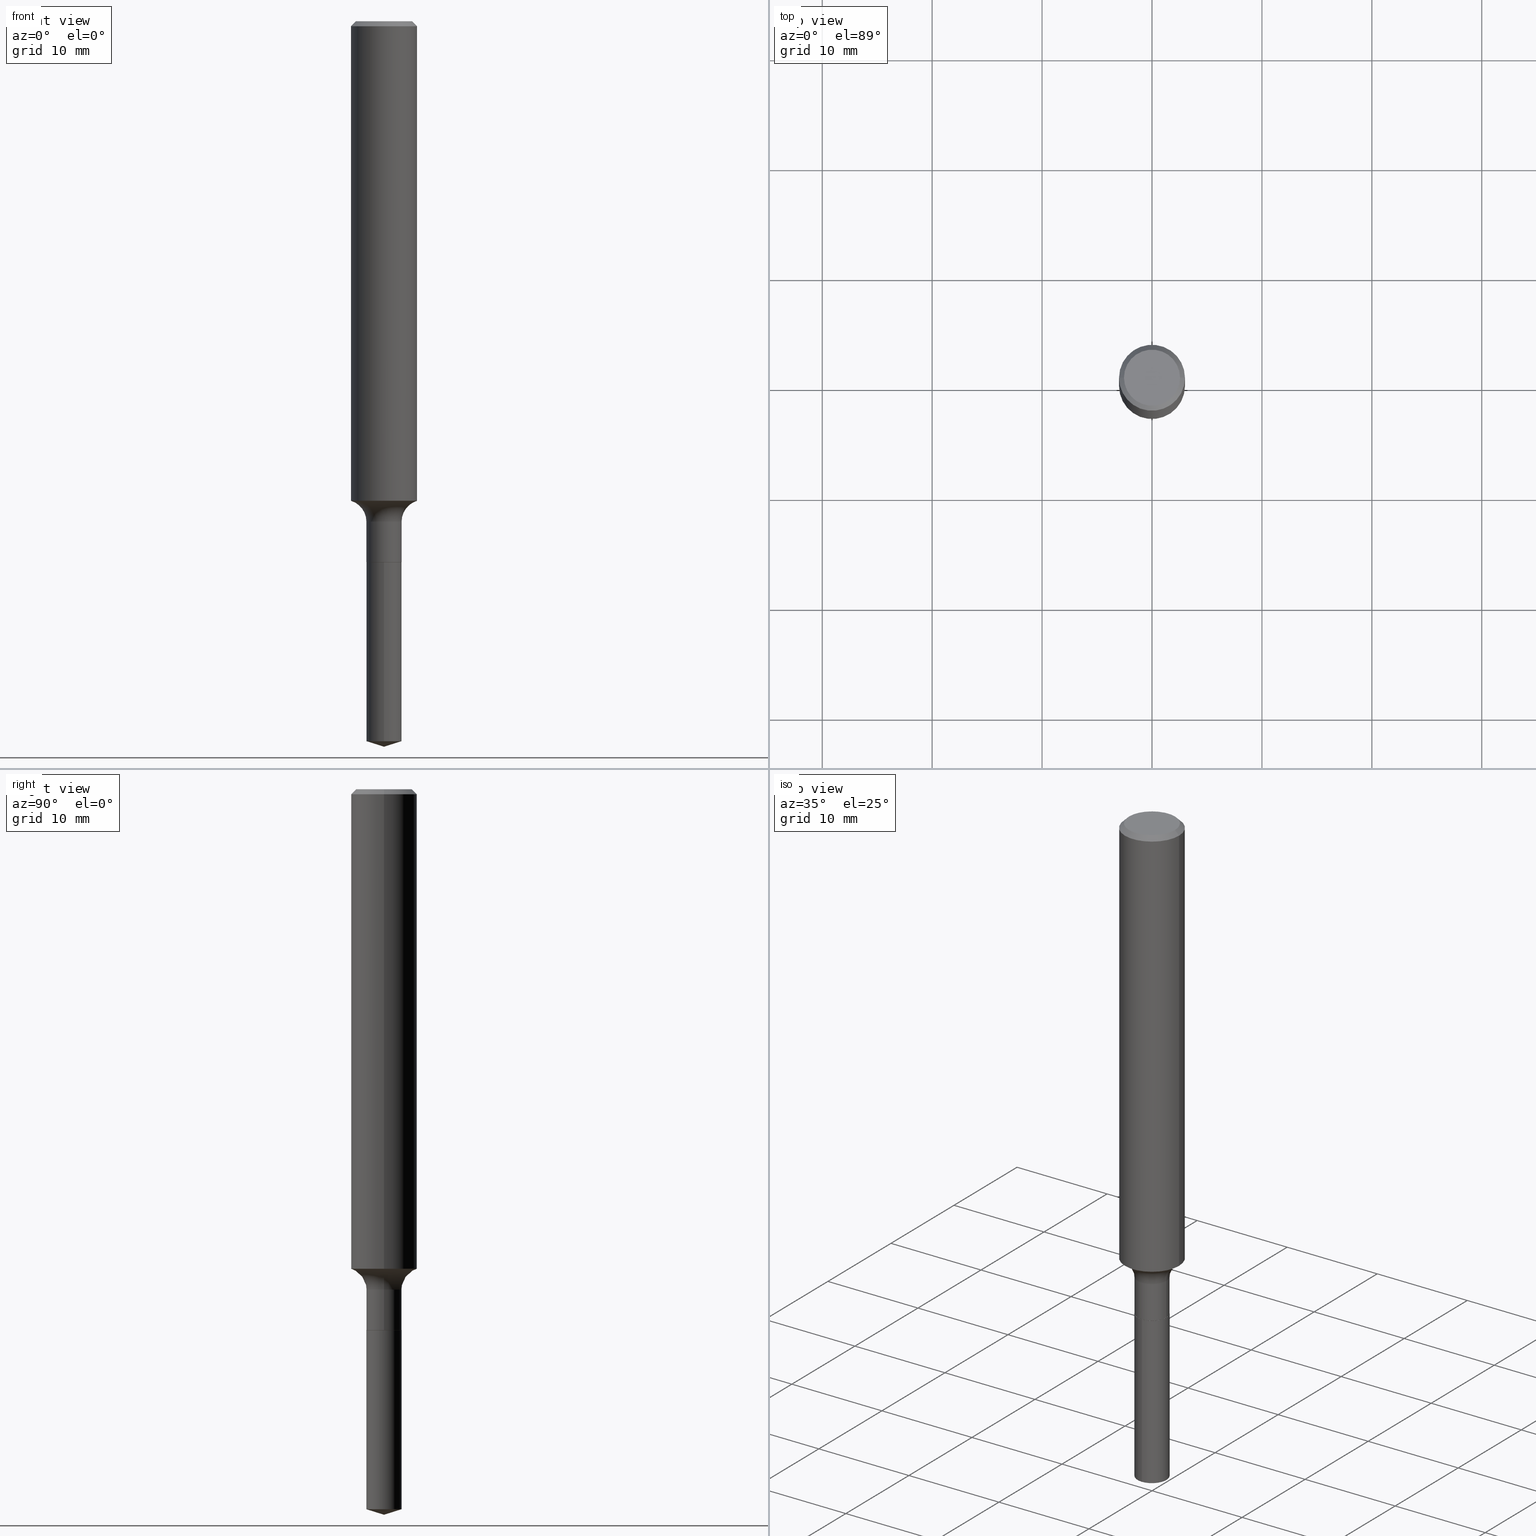
[diagram: canonical four-view strip — front | top / right | iso, engineering-drawing reading convention]
A machine part, canonical four-view strip (front | top / right | iso — engineering-drawing reading convention). The complete STEP part file that produces these views, byte-faithful:
ISO-10303-21;
HEADER;
FILE_DESCRIPTION (( 'STEP AP203' ),
    '1' );
FILE_NAME ('50004.STEP',
    '2024-04-19T12:44:44',
    ( '' ),
    ( '' ),
    'SwSTEP 2.0',
    'SolidWorks 2023',
    '' );
FILE_SCHEMA (( 'CONFIG_CONTROL_DESIGN' ));
ENDSEC;

DATA;
#1 = DATE_AND_TIME ( #223, #466 ) ;
#2 = DIRECTION ( 'NONE',  ( -2.445468806185136597E-29, 3.491481338843145583E-15, 1.000000000000000000 ) ) ;
#3 = TOROIDAL_SURFACE ( 'NONE', #443, 0.1409999999999999865, 0.07799999999999995826 ) ;
#4 = CIRCLE ( 'NONE', #429, 0.1181000000000001909 ) ;
#5 = SECURITY_CLASSIFICATION_LEVEL ( 'unclassified' ) ;
#6 = DIRECTION ( 'NONE',  ( -2.445450074066732039E-29, 3.491508164302866800E-15, 1.000000000000000000 ) ) ;
#7 = DIRECTION ( 'NONE',  ( -2.445468806185136597E-29, 3.491481338843145583E-15, 1.000000000000000000 ) ) ;
#8 = EDGE_LOOP ( 'NONE', ( #131, #183, #29 ) ) ;
#9 = CONICAL_SURFACE ( 'NONE', #246, 124.8659371009116796, 1.265363707695883910 ) ;
#10 = FACE_OUTER_BOUND ( 'NONE', #222, .T. ) ;
#11 = DIRECTION ( 'NONE',  ( 2.445468806185136597E-29, -3.491481338843145583E-15, -1.000000000000000000 ) ) ;
#12 = EDGE_CURVE ( 'NONE', #264, #146, #151, .T. ) ;
#13 = CARTESIAN_POINT ( 'NONE',  ( 1.756471047675818066E-47, -2.507775143018572197E-33, -7.182553476999219361E-19 ) ) ;
#14 = ORIENTED_EDGE ( 'NONE', *, *, #208, .T. ) ;
#15 = EDGE_CURVE ( 'NONE', #59, #288, #35, .T. ) ;
#16 = CONICAL_SURFACE ( 'NONE', #87, 0.06250000000000000000, 0.7853981633975591903 ) ;
#17 = DIRECTION ( 'NONE',  ( 1.000000000000000000, -6.982962677686266711E-15, 0.000000000000000000 ) ) ;
#18 = VERTEX_POINT ( 'NONE', #404 ) ;
#19 = VECTOR ( 'NONE', #181, 39.37007874015748143 ) ;
#20 = ORIENTED_EDGE ( 'NONE', *, *, #278, .T. ) ;
#21 = DESIGN_CONTEXT ( 'detailed design', #95, 'design' ) ;
#22 = CARTESIAN_POINT ( 'NONE',  ( 0.1180999999999999966, -8.720764054544245267E-16, -0.01771500000000010219 ) ) ;
#23 = CYLINDRICAL_SURFACE ( 'NONE', #50, 0.06300000000000000044 ) ;
#24 = CARTESIAN_POINT ( 'NONE',  ( 4.736873077580609355E-29, -6.762999353339172249E-15, -1.936999999999999833 ) ) ;
#25 = APPLICATION_CONTEXT ( 'configuration controlled 3d designs of mechanical parts and assemblies' ) ;
#26 = DIRECTION ( 'NONE',  ( -2.445468806185136597E-29, 3.491481338843145583E-15, 1.000000000000000000 ) ) ;
#27 = AXIS2_PLACEMENT_3D ( 'NONE', #286, #398, #57 ) ;
#28 = CONICAL_SURFACE ( 'NONE', #122, 0.1180999999999999966, 0.7853981633974456145 ) ;
#29 = ORIENTED_EDGE ( 'NONE', *, *, #197, .F. ) ;
#30 = ORIENTED_EDGE ( 'NONE', *, *, #285, .F. ) ;
#31 = DIRECTION ( 'NONE',  ( -2.445450074066732319E-29, 3.491508164302866800E-15, 1.000000000000000000 ) ) ;
#32 = ORIENTED_EDGE ( 'NONE', *, *, #420, .T. ) ;
#33 = CC_DESIGN_PERSON_AND_ORGANIZATION_ASSIGNMENT ( #413, #309, ( #157 ) ) ;
#34 = PLANE ( 'NONE',  #427 ) ;
#35 = CIRCLE ( 'NONE', #212, 0.06250000000000000000 ) ;
#36 = VERTEX_POINT ( 'NONE', #113 ) ;
#37 = COORDINATED_UNIVERSAL_TIME_OFFSET ( 5, 0, .BEHIND. ) ;
#38 = CYLINDRICAL_SURFACE ( 'NONE', #377, 0.06300000000000000044 ) ;
#39 = APPROVAL_ROLE ( '' ) ;
#40 = DIRECTION ( 'NONE',  ( -2.445468806185136597E-29, 3.491481338843145583E-15, 1.000000000000000000 ) ) ;
#41 = APPROVAL_STATUS ( 'not_yet_approved' ) ;
#42 = DIRECTION ( 'NONE',  ( 1.000000000000000000, -6.982962677686272233E-15, 0.000000000000000000 ) ) ;
#43 = CIRCLE ( 'NONE', #322, 0.06300000000000000044 ) ;
#44 = DATE_AND_TIME ( #229, #333 ) ;
#45 = FACE_OUTER_BOUND ( 'NONE', #241, .T. ) ;
#46 = CARTESIAN_POINT ( 'NONE',  ( -8.992326821456285548E-28, 1.283886684972974943E-13, 36.77167874015748339 ) ) ;
#47 = PRODUCT_DEFINITION ( 'UNKNOWN', '', #458, #21 ) ;
#48 = CIRCLE ( 'NONE', #257, 0.07799999999999995826 ) ;
#49 = CC_DESIGN_SECURITY_CLASSIFICATION ( #157, ( #458 ) ) ;
#50 = AXIS2_PLACEMENT_3D ( 'NONE', #256, #178, #220 ) ;
#51 = DIRECTION ( 'NONE',  ( -2.445450074066732319E-29, 3.491508164302866800E-15, 1.000000000000000000 ) ) ;
#52 = CARTESIAN_POINT ( 'NONE',  ( -0.1181000000000001077, 8.391509709326790846E-16, -5.809262341591049389E-30 ) ) ;
#53 = ORIENTED_EDGE ( 'NONE', *, *, #328, .F. ) ;
#54 = ADVANCED_FACE ( 'NONE', ( #451 ), #34, .F. ) ;
#55 = CARTESIAN_POINT ( 'NONE',  ( 4.736873077580609355E-29, -6.762999353339172249E-15, -1.936999999999999833 ) ) ;
#56 = EDGE_LOOP ( 'NONE', ( #337, #14, #174, #168 ) ) ;
#57 = DIRECTION ( 'NONE',  ( 1.000000000000000000, -6.982962677686265922E-15, 4.876176775795935793E-29 ) ) ;
#58 = TOROIDAL_SURFACE ( 'NONE', #204, 0.1409999999999999865, 0.07799999999999995826 ) ;
#59 = VERTEX_POINT ( 'NONE', #269 ) ;
#60 = AXIS2_PLACEMENT_3D ( 'NONE', #215, #26, #173 ) ;
#61 = CYLINDRICAL_SURFACE ( 'NONE', #70, 0.1181000000000001077 ) ;
#62 = PRODUCT_RELATED_PRODUCT_CATEGORY ( 'detail', '', ( #123 ) ) ;
#63 = DIRECTION ( 'NONE',  ( -2.445468806185136597E-29, 3.491481338843145583E-15, 1.000000000000000000 ) ) ;
#64 = DIRECTION ( 'NONE',  ( 1.000000000000000000, -6.982962677686262766E-15, 0.000000000000000000 ) ) ;
#65 = VERTEX_POINT ( 'NONE', #159 ) ;
#66 = ORIENTED_EDGE ( 'NONE', *, *, #15, .T. ) ;
#67 = ORIENTED_EDGE ( 'NONE', *, *, #82, .F. ) ;
#68 = DIRECTION ( 'NONE',  ( -6.982962677686266711E-15, -1.000000000000000000, 3.491481338843145583E-15 ) ) ;
#69 = CIRCLE ( 'NONE', #150, 0.1180999999999999966 ) ;
#70 = AXIS2_PLACEMENT_3D ( 'NONE', #405, #439, #338 ) ;
#71 = EDGE_CURVE ( 'NONE', #210, #486, #386, .T. ) ;
#72 = PERSON ( 'UNSPECIFIED', 'UNSPECIFIED', 'UNSPECIFIED', ('UNSPECIFIED'), ('UNSPECIFIED'), ('UNSPECIFIED') ) ;
#73 = DIRECTION ( 'NONE',  ( -2.445468806185136597E-29, 3.491481338843145583E-15, 1.000000000000000000 ) ) ;
#74 = ADVANCED_FACE ( 'NONE', ( #385 ), #58, .F. ) ;
#75 = APPROVAL_ROLE ( '' ) ;
#76 = DIRECTION ( 'NONE',  ( 2.445450074066731759E-29, -3.491508164302866800E-15, -1.000000000000000000 ) ) ;
#77 = ORIENTED_EDGE ( 'NONE', *, *, #197, .T. ) ;
#78 = LINE ( 'NONE', #226, #217 ) ;
#79 = AXIS2_PLACEMENT_3D ( 'NONE', #55, #170, #460 ) ;
#80 = ORIENTED_EDGE ( 'NONE', *, *, #160, .F. ) ;
#81 = APPLICATION_PROTOCOL_DEFINITION ( 'international standard', 'config_control_design', 1994, #95 ) ;
#82 = EDGE_CURVE ( 'NONE', #289, #343, #302, .T. ) ;
#83 = EDGE_CURVE ( 'NONE', #471, #210, #448, .T. ) ;
#84 = DIRECTION ( 'NONE',  ( 1.000000000000000000, -6.982962677686266711E-15, 4.876176775795935793E-29 ) ) ;
#85 = DIRECTION ( 'NONE',  ( 0.000000000000000000, 0.000000000000000000, 1.000000000000000000 ) ) ;
#86 = CARTESIAN_POINT ( 'NONE',  ( -0.1180999999999999966, -2.190149613831435069E-15, -0.01771500000000010219 ) ) ;
#87 = AXIS2_PLACEMENT_3D ( 'NONE', #240, #393, #422 ) ;
#88 = CARTESIAN_POINT ( 'NONE',  ( 4.476419235289261305E-16, 0.06299999999999097988, -2.578536176300623595 ) ) ;
#89 = DIRECTION ( 'NONE',  ( -2.445450074066732319E-29, 3.491508164302866800E-15, 1.000000000000000000 ) ) ;
#90 = FACE_OUTER_BOUND ( 'NONE', #376, .T. ) ;
#91 = AXIS2_PLACEMENT_3D ( 'NONE', #236, #51, #318 ) ;
#92 = LOCAL_TIME ( 8, 44, 44.00000000000000000, #184 ) ;
#93 = CARTESIAN_POINT ( 'NONE',  ( 4.736873077580609355E-29, -6.762999353339172249E-15, -1.936999999999999833 ) ) ;
#94 = ADVANCED_FACE ( 'NONE', ( #188 ), #38, .T. ) ;
#95 = APPLICATION_CONTEXT ( 'configuration controlled 3d designs of mechanical parts and assemblies' ) ;
#96 = CARTESIAN_POINT ( 'NONE',  ( 6.354257472454996656E-29, -9.072334814124569069E-15, -2.598399999999999821 ) ) ;
#97 = ORIENTED_EDGE ( 'NONE', *, *, #71, .F. ) ;
#98 = DIRECTION ( 'NONE',  ( 1.000000000000000000, -6.982962677686269077E-15, 0.000000000000000000 ) ) ;
#99 = APPLICATION_PROTOCOL_DEFINITION ( 'international standard', 'config_control_design', 1994, #25 ) ;
#100 = VERTEX_POINT ( 'NONE', #86 ) ;
#101 = EDGE_CURVE ( 'NONE', #36, #297, #351, .T. ) ;
#102 = VECTOR ( 'NONE', #216, 39.37007874015748854 ) ;
#103 = CARTESIAN_POINT ( 'NONE',  ( 6.305717767431456764E-29, -9.002928150588443769E-15, -2.578536176300623595 ) ) ;
#104 = DIRECTION ( 'NONE',  ( -6.982962677686265922E-15, -1.000000000000000000, 0.000000000000000000 ) ) ;
#105 = EDGE_LOOP ( 'NONE', ( #258, #218, #97, #449 ) ) ;
#106 = DIRECTION ( 'NONE',  ( -6.982962677686265922E-15, -1.000000000000000000, 0.000000000000000000 ) ) ;
#107 = ORIENTED_EDGE ( 'NONE', *, *, #301, .F. ) ;
#108 = UNCERTAINTY_MEASURE_WITH_UNIT (LENGTH_MEASURE( 1.000000000000000082E-05 ), #214, 'distance_accuracy_value', 'NONE');
#109 = EDGE_LOOP ( 'NONE', ( #135, #239 ) ) ;
#110 = CC_DESIGN_APPROVAL ( #224, ( #47 ) ) ;
#111 = ORIENTED_EDGE ( 'NONE', *, *, #357, .T. ) ;
#112 = APPROVAL_DATE_TIME ( #303, #408 ) ;
#113 = CARTESIAN_POINT ( 'NONE',  ( 0.1181000000000001354, -6.821437469845371752E-15, -1.717537341785582594 ) ) ;
#114 = CARTESIAN_POINT ( 'NONE',  ( 6.354257472454996656E-29, -9.072334814124569069E-15, -2.598399999999999821 ) ) ;
#115 = MANIFOLD_SOLID_BREP ( 'Body-Move/Copy2[2]', #194 ) ;
#116 = DIRECTION ( 'NONE',  ( 1.000000000000000000, -6.982962677686268288E-15, 4.883557194083113462E-29 ) ) ;
#117 = EDGE_CURVE ( 'NONE', #59, #471, #78, .T. ) ;
#118 = ORIENTED_EDGE ( 'NONE', *, *, #185, .F. ) ;
#119 = SHAPE_DEFINITION_REPRESENTATION ( #268, #463 ) ;
#120 = VECTOR ( 'NONE', #389, 39.37007874015748143 ) ;
#121 = DIRECTION ( 'NONE',  ( 1.000000000000000000, -6.982962677686265922E-15, 4.876176775795936353E-29 ) ) ;
#122 = AXIS2_PLACEMENT_3D ( 'NONE', #312, #11, #461 ) ;
#123 = PRODUCT ( '50004', '50004', '', ( #266 ) ) ;
#124 = DATE_AND_TIME ( #152, #126 ) ;
#125 = ADVANCED_FACE ( 'NONE', ( #191 ), #155, .T. ) ;
#126 = LOCAL_TIME ( 8, 44, 44.00000000000000000, #491 ) ;
#127 = CARTESIAN_POINT ( 'NONE',  ( 0.1181000000000001077, -8.246878922347488542E-16, 5.758764772215005345E-30 ) ) ;
#128 = ORIENTED_EDGE ( 'NONE', *, *, #82, .T. ) ;
#129 = CARTESIAN_POINT ( 'NONE',  ( 4.735650343177517114E-29, -6.761253612669751535E-15, -1.936499999999999888 ) ) ;
#130 = CARTESIAN_POINT ( 'NONE',  ( 0.000000000000000000, 0.000000000000000000, 0.000000000000000000 ) ) ;
#131 = ORIENTED_EDGE ( 'NONE', *, *, #165, .F. ) ;
#132 = VECTOR ( 'NONE', #291, 39.37007874015748854 ) ;
#133 = AXIS2_PLACEMENT_3D ( 'NONE', #387, #85, #190 ) ;
#134 = DIRECTION ( 'NONE',  ( -2.445468806185136597E-29, 3.491481338843145583E-15, 1.000000000000000000 ) ) ;
#135 = ORIENTED_EDGE ( 'NONE', *, *, #201, .T. ) ;
#136 = FACE_OUTER_BOUND ( 'NONE', #227, .T. ) ;
#137 = CARTESIAN_POINT ( 'NONE',  ( -4.399266486941873942E-16, -0.06300000000000675893, -1.936999999999999611 ) ) ;
#138 = ORIENTED_EDGE ( 'NONE', *, *, #101, .T. ) ;
#139 = FACE_OUTER_BOUND ( 'NONE', #148, .T. ) ;
#140 = CC_DESIGN_DATE_AND_TIME_ASSIGNMENT ( #149, #450, ( #157 ) ) ;
#141 = CARTESIAN_POINT ( 'NONE',  ( 6.354330677019383032E-29, -9.072230892293610064E-15, -2.598399999999999821 ) ) ;
#142 = CARTESIAN_POINT ( 'NONE',  ( 4.476419235289264263E-16, 0.06299999999999324196, -1.937000000000000055 ) ) ;
#143 = EDGE_CURVE ( 'NONE', #486, #210, #313, .T. ) ;
#144 = CARTESIAN_POINT ( 'NONE',  ( 4.735650343177517114E-29, -6.761253612669751535E-15, -1.936499999999999888 ) ) ;
#145 = CARTESIAN_POINT ( 'NONE',  ( 8.782355238379090331E-48, -1.253887571509286098E-33, -3.591276738499609681E-19 ) ) ;
#146 = VERTEX_POINT ( 'NONE', #436 ) ;
#147 = DIRECTION ( 'NONE',  ( -2.445468806185136597E-29, 3.491481338843145583E-15, 1.000000000000000000 ) ) ;
#148 = EDGE_LOOP ( 'NONE', ( #66, #203, #107, #469 ) ) ;
#149 = DATE_AND_TIME ( #384, #259 ) ;
#150 = AXIS2_PLACEMENT_3D ( 'NONE', #209, #364, #17 ) ;
#151 = LINE ( 'NONE', #114, #484 ) ;
#152 = CALENDAR_DATE ( 2024, 19, 4 ) ;
#153 = DIRECTION ( 'NONE',  ( -2.445468806185136597E-29, 3.491481338843145583E-15, 1.000000000000000000 ) ) ;
#154 = PERSON_AND_ORGANIZATION ( #72, #401 ) ;
#155 = CYLINDRICAL_SURFACE ( 'NONE', #392, 0.1181000000000001077 ) ;
#156 = CIRCLE ( 'NONE', #281, 0.1003850000000000020 ) ;
#157 = SECURITY_CLASSIFICATION ( '', '', #5 ) ;
#158 = CALENDAR_DATE ( 2024, 19, 4 ) ;
#159 = CARTESIAN_POINT ( 'NONE',  ( -0.06300000000000001432, -6.061526736476412649E-15, -1.936499999999999888 ) ) ;
#160 = EDGE_CURVE ( 'NONE', #255, #18, #295, .T. ) ;
#161 = LINE ( 'NONE', #464, #225 ) ;
#162 = AXIS2_PLACEMENT_3D ( 'NONE', #144, #298, #98 ) ;
#163 = CIRCLE ( 'NONE', #308, 0.06250000000000000000 ) ;
#164 = CARTESIAN_POINT ( 'NONE',  ( -0.06250000000000000000, -6.316260916314998432E-15, -1.936999999999999833 ) ) ;
#165 = EDGE_CURVE ( 'NONE', #264, #289, #367, .T. ) ;
#166 = DIRECTION ( 'NONE',  ( -6.982962677686265922E-15, -1.000000000000000000, 3.500519750498799490E-15 ) ) ;
#167 = DIRECTION ( 'NONE',  ( 1.000000000000000000, -6.982962677686266711E-15, 4.876140833081945105E-29 ) ) ;
#168 = ORIENTED_EDGE ( 'NONE', *, *, #143, .F. ) ;
#169 = VECTOR ( 'NONE', #262, 39.37007874015748143 ) ;
#170 = DIRECTION ( 'NONE',  ( -2.445450074066732319E-29, 3.491508164302866800E-15, 1.000000000000000000 ) ) ;
#171 = ORIENTED_EDGE ( 'NONE', *, *, #315, .F. ) ;
#172 = CARTESIAN_POINT ( 'NONE',  ( 4.382524647564382413E-29, -6.257083707340800005E-15, -1.792099999999999804 ) ) ;
#173 = DIRECTION ( 'NONE',  ( 1.000000000000000000, -6.982962677686266711E-15, 0.000000000000000000 ) ) ;
#174 = ORIENTED_EDGE ( 'NONE', *, *, #83, .T. ) ;
#175 = CARTESIAN_POINT ( 'NONE',  ( 6.305717767431456764E-29, -9.002928150588443769E-15, -2.578536176300623595 ) ) ;
#176 = EDGE_LOOP ( 'NONE', ( #317, #396 ) ) ;
#177 = CONICAL_SURFACE ( 'NONE', #91, 124.8659371009116796, 1.265363707695883910 ) ;
#178 = DIRECTION ( 'NONE',  ( -2.445450074066732319E-29, 3.491508164302866800E-15, 1.000000000000000000 ) ) ;
#179 = ORIENTED_EDGE ( 'NONE', *, *, #420, .F. ) ;
#180 = CARTESIAN_POINT ( 'NONE',  ( 0.06300000000000001432, -7.201180261363987000E-15, -1.936499999999999888 ) ) ;
#181 = DIRECTION ( 'NONE',  ( -0.7071067811866259545, 7.493145998870638150E-15, 0.7071067811864690800 ) ) ;
#182 = CARTESIAN_POINT ( 'NONE',  ( 4.382524647564382413E-29, -6.257083707340800005E-15, -1.792099999999999804 ) ) ;
#183 = ORIENTED_EDGE ( 'NONE', *, *, #12, .T. ) ;
#184 = COORDINATED_UNIVERSAL_TIME_OFFSET ( 5, 0, .BEHIND. ) ;
#185 = EDGE_CURVE ( 'NONE', #297, #486, #48, .T. ) ;
#186 = CLOSED_SHELL ( 'NONE', ( #347, #306, #270, #293, #54 ) ) ;
#187 = AXIS2_PLACEMENT_3D ( 'NONE', #93, #279, #473 ) ;
#188 = FACE_OUTER_BOUND ( 'NONE', #56, .T. ) ;
#189 = VERTEX_POINT ( 'NONE', #369 ) ;
#190 = DIRECTION ( 'NONE',  ( 1.000000000000000000, 0.000000000000000000, 0.000000000000000000 ) ) ;
#191 = FACE_OUTER_BOUND ( 'NONE', #332, .T. ) ;
#192 = COORDINATED_UNIVERSAL_TIME_OFFSET ( 5, 0, .BEHIND. ) ;
#193 = DIRECTION ( 'NONE',  ( -2.445468806185136597E-29, 3.491481338843145583E-15, 1.000000000000000000 ) ) ;
#194 = CLOSED_SHELL ( 'NONE', ( #371, #274, #125, #234, #263, #94, #74, #477, #329, #440, #233, #253 ) ) ;
#195 = CARTESIAN_POINT ( 'NONE',  ( 4.476419235289104519E-16, 0.06299999999999324196, -1.937000000000000055 ) ) ;
#196 = CC_DESIGN_APPROVAL ( #408, ( #458 ) ) ;
#197 = EDGE_CURVE ( 'NONE', #289, #146, #409, .T. ) ;
#198 = DATE_TIME_ROLE ( 'creation_date' ) ;
#199 = DIRECTION ( 'NONE',  ( -1.000000000000000000, 6.982962677686266711E-15, 0.000000000000000000 ) ) ;
#200 = ORIENTED_EDGE ( 'NONE', *, *, #185, .T. ) ;
#201 = EDGE_CURVE ( 'NONE', #189, #343, #43, .T. ) ;
#202 = FACE_OUTER_BOUND ( 'NONE', #8, .T. ) ;
#203 = ORIENTED_EDGE ( 'NONE', *, *, #424, .T. ) ;
#204 = AXIS2_PLACEMENT_3D ( 'NONE', #492, #193, #116 ) ;
#205 = DIRECTION ( 'NONE',  ( 1.000000000000000000, -6.982962677686266711E-15, 4.876140833081945105E-29 ) ) ;
#206 = DIRECTION ( 'NONE',  ( -2.445468806185136597E-29, 3.491481338843145583E-15, 1.000000000000000000 ) ) ;
#207 = EDGE_LOOP ( 'NONE', ( #310, #465, #380, #325 ) ) ;
#208 = EDGE_CURVE ( 'NONE', #65, #471, #475, .T. ) ;
#209 = CARTESIAN_POINT ( 'NONE',  ( 4.332147990156994116E-31, -6.185159191760667929E-17, -0.01771500000000010219 ) ) ;
#210 = VERTEX_POINT ( 'NONE', #242 ) ;
#211 = FACE_OUTER_BOUND ( 'NONE', #324, .T. ) ;
#212 = AXIS2_PLACEMENT_3D ( 'NONE', #254, #490, #426 ) ;
#213 = CC_DESIGN_PERSON_AND_ORGANIZATION_ASSIGNMENT ( #415, #381, ( #458 ) ) ;
#214 =( CONVERSION_BASED_UNIT ( 'INCH', #482 ) LENGTH_UNIT ( ) NAMED_UNIT ( #272 ) );
#215 = CARTESIAN_POINT ( 'NONE',  ( 4.332147990156994116E-31, -6.185159191760667929E-17, -0.01771500000000010219 ) ) ;
#216 = DIRECTION ( 'NONE',  ( 0.7071067811865454633, -7.319954787623246579E-15, -0.7071067811865493491 ) ) ;
#217 = VECTOR ( 'NONE', #379, 39.37007874015748143 ) ;
#218 = ORIENTED_EDGE ( 'NONE', *, *, #447, .T. ) ;
#219 = AXIS2_PLACEMENT_3D ( 'NONE', #292, #73, #299 ) ;
#220 = DIRECTION ( 'NONE',  ( -6.982962677686265922E-15, -1.000000000000000000, 4.336266656609941617E-15 ) ) ;
#221 = EDGE_LOOP ( 'NONE', ( #438, #399, #383, #30 ) ) ;
#222 = EDGE_LOOP ( 'NONE', ( #468, #32, #245, #339 ) ) ;
#223 = CALENDAR_DATE ( 2024, 19, 4 ) ;
#224 = APPROVAL ( #261, 'UNSPECIFIED' ) ;
#225 = VECTOR ( 'NONE', #358, 39.37007874015748854 ) ;
#226 = CARTESIAN_POINT ( 'NONE',  ( 0.06250000000000000000, -7.199434520694563130E-15, -1.936999999999999833 ) ) ;
#227 = EDGE_LOOP ( 'NONE', ( #406, #179 ) ) ;
#228 = PERSON_AND_ORGANIZATION ( #72, #401 ) ;
#229 = CALENDAR_DATE ( 2024, 19, 4 ) ;
#230 = DIRECTION ( 'NONE',  ( 6.982962677686265922E-15, 1.000000000000000000, -3.491508164302866800E-15 ) ) ;
#231 = PERSON_AND_ORGANIZATION ( #72, #401 ) ;
#232 = CYLINDRICAL_SURFACE ( 'NONE', #79, 0.06300000000000000044 ) ;
#233 = ADVANCED_FACE ( 'NONE', ( #136 ), #326, .F. ) ;
#234 = ADVANCED_FACE ( 'NONE', ( #211 ), #3, .F. ) ;
#235 = FACE_OUTER_BOUND ( 'NONE', #221, .T. ) ;
#236 = CARTESIAN_POINT ( 'NONE',  ( -8.992326821456285548E-28, 1.283886684972974943E-13, 36.77167874015748339 ) ) ;
#237 = AXIS2_PLACEMENT_3D ( 'NONE', #175, #330, #104 ) ;
#238 = DIRECTION ( 'NONE',  ( -2.445450074066732039E-29, 3.491508164302866800E-15, 1.000000000000000000 ) ) ;
#239 = ORIENTED_EDGE ( 'NONE', *, *, #336, .T. ) ;
#240 = CARTESIAN_POINT ( 'NONE',  ( 4.736873077580609355E-29, -6.762999353339172249E-15, -1.936999999999999833 ) ) ;
#241 = EDGE_LOOP ( 'NONE', ( #67, #77, #20, #481 ) ) ;
#242 = CARTESIAN_POINT ( 'NONE',  ( 0.06299999999999998657, -6.697010356035035470E-15, -1.792099999999999804 ) ) ;
#243 = CC_DESIGN_PERSON_AND_ORGANIZATION_ASSIGNMENT ( #228, #352, ( #123 ) ) ;
#244 = CARTESIAN_POINT ( 'NONE',  ( 4.736873077580609355E-29, -6.762999353339172249E-15, -1.936999999999999833 ) ) ;
#245 = ORIENTED_EDGE ( 'NONE', *, *, #117, .T. ) ;
#246 = AXIS2_PLACEMENT_3D ( 'NONE', #46, #89, #166 ) ;
#247 = CARTESIAN_POINT ( 'NONE',  ( 4.382524647564382413E-29, -6.257083707340800005E-15, -1.792099999999999804 ) ) ;
#248 = LINE ( 'NONE', #437, #19 ) ;
#249 = DIRECTION ( 'NONE',  ( 7.105427357601001859E-15, 1.000000000000000000, -3.491481338843145583E-15 ) ) ;
#250 = EDGE_CURVE ( 'NONE', #36, #18, #428, .T. ) ;
#251 = PLANE ( 'NONE',  #273 ) ;
#252 = ORIENTED_EDGE ( 'NONE', *, *, #101, .F. ) ;
#253 = ADVANCED_FACE ( 'NONE', ( #10 ), #16, .T. ) ;
#254 = CARTESIAN_POINT ( 'NONE',  ( 4.736873077580609355E-29, -6.762999353339172249E-15, -1.936999999999999833 ) ) ;
#255 = VERTEX_POINT ( 'NONE', #430 ) ;
#256 = CARTESIAN_POINT ( 'NONE',  ( 4.736873077580609355E-29, -6.762999353339172249E-15, -1.936999999999999833 ) ) ;
#257 = AXIS2_PLACEMENT_3D ( 'NONE', #472, #249, #402 ) ;
#258 = ORIENTED_EDGE ( 'NONE', *, *, #301, .T. ) ;
#259 = LOCAL_TIME ( 8, 44, 44.00000000000000000, #192 ) ;
#260 = DIRECTION ( 'NONE',  ( -2.445468806185136877E-29, 3.491481338843145188E-15, 1.000000000000000000 ) ) ;
#261 = APPROVAL_STATUS ( 'not_yet_approved' ) ;
#262 = DIRECTION ( 'NONE',  ( -2.445468806185136877E-29, 3.491481338843145188E-15, 1.000000000000000000 ) ) ;
#263 = ADVANCED_FACE ( 'NONE', ( #467 ), #323, .T. ) ;
#264 = VERTEX_POINT ( 'NONE', #96 ) ;
#265 = DIRECTION ( 'NONE',  ( -6.659769872151615522E-15, -0.9537169507482243791, 0.3007057995042812792 ) ) ;
#266 = MECHANICAL_CONTEXT ( 'NONE', #25, 'mechanical' ) ;
#267 = CIRCLE ( 'NONE', #485, 0.06300000000000000044 ) ;
#268 = PRODUCT_DEFINITION_SHAPE ( 'NONE', 'NONE',  #47 ) ;
#269 = CARTESIAN_POINT ( 'NONE',  ( 0.06250000000000000000, -7.199434520694563130E-15, -1.936999999999999833 ) ) ;
#270 = ADVANCED_FACE ( 'NONE', ( #202 ), #9, .T. ) ;
#271 = PERSON_AND_ORGANIZATION ( #72, #401 ) ;
#272 = DIMENSIONAL_EXPONENTS ( 1.000000000000000000, 0.000000000000000000, 0.000000000000000000, 0.000000000000000000, 0.000000000000000000, 0.000000000000000000, 0.000000000000000000 ) ;
#273 = AXIS2_PLACEMENT_3D ( 'NONE', #145, #403, #407 ) ;
#274 = ADVANCED_FACE ( 'NONE', ( #235 ), #421, .T. ) ;
#275 = DIRECTION ( 'NONE',  ( 1.000000000000000000, -6.982962677686268288E-15, 4.883557194083113462E-29 ) ) ;
#276 = ORIENTED_EDGE ( 'NONE', *, *, #285, .T. ) ;
#277 = DIRECTION ( 'NONE',  ( -2.445468806185136597E-29, 3.491481338843145583E-15, 1.000000000000000000 ) ) ;
#278 = EDGE_CURVE ( 'NONE', #146, #189, #316, .T. ) ;
#279 = DIRECTION ( 'NONE',  ( -2.445450074066732319E-29, 3.491508164302866800E-15, 1.000000000000000000 ) ) ;
#280 = ORIENTED_EDGE ( 'NONE', *, *, #201, .F. ) ;
#281 = AXIS2_PLACEMENT_3D ( 'NONE', #320, #134, #205 ) ;
#282 = VECTOR ( 'NONE', #260, 39.37007874015748143 ) ;
#283 = CARTESIAN_POINT ( 'NONE',  ( -0.1003850000000000020, 7.319105043583386689E-16, -7.182553477049322429E-19 ) ) ;
#284 = EDGE_LOOP ( 'NONE', ( #80, #171, #276, #483 ) ) ;
#285 = EDGE_CURVE ( 'NONE', #319, #100, #161, .T. ) ;
#286 = CARTESIAN_POINT ( 'NONE',  ( 4.736873077580609355E-29, -6.762999353339172249E-15, -1.936999999999999833 ) ) ;
#287 = LINE ( 'NONE', #331, #282 ) ;
#288 = VERTEX_POINT ( 'NONE', #164 ) ;
#289 = VERTEX_POINT ( 'NONE', #88 ) ;
#290 = MANIFOLD_SOLID_BREP ( 'Body-Move/Copy2[1]', #186 ) ;
#291 = DIRECTION ( 'NONE',  ( 6.776566513254240782E-15, 0.9537169507482263775, 0.3007057995042746179 ) ) ;
#292 = CARTESIAN_POINT ( 'NONE',  ( 4.736873077580609355E-29, -6.762999353339172249E-15, -1.936999999999999833 ) ) ;
#293 = ADVANCED_FACE ( 'NONE', ( #45 ), #232, .T. ) ;
#294 = AXIS2_PLACEMENT_3D ( 'NONE', #130, #206, #423 ) ;
#295 = LINE ( 'NONE', #22, #102 ) ;
#296 = DIRECTION ( 'NONE',  ( 1.000000000000000000, -6.982962677686269077E-15, 0.000000000000000000 ) ) ;
#297 = VERTEX_POINT ( 'NONE', #395 ) ;
#298 = DIRECTION ( 'NONE',  ( -2.445468806185136597E-29, 3.491481338843145583E-15, 1.000000000000000000 ) ) ;
#299 = DIRECTION ( 'NONE',  ( 1.000000000000000000, -6.982962677686262766E-15, 0.000000000000000000 ) ) ;
#300 = VECTOR ( 'NONE', #390, 39.37007874015748143 ) ;
#301 = EDGE_CURVE ( 'NONE', #471, #65, #400, .T. ) ;
#302 = LINE ( 'NONE', #195, #454 ) ;
#303 = DATE_AND_TIME ( #158, #92 ) ;
#304 = CARTESIAN_POINT ( 'NONE',  ( 4.736873077580609355E-29, -6.762999353339172249E-15, -1.936999999999999833 ) ) ;
#305 = EDGE_CURVE ( 'NONE', #297, #100, #425, .T. ) ;
#306 = ADVANCED_FACE ( 'NONE', ( #90 ), #177, .T. ) ;
#307 = AXIS2_PLACEMENT_3D ( 'NONE', #397, #362, #199 ) ;
#308 = AXIS2_PLACEMENT_3D ( 'NONE', #244, #147, #64 ) ;
#309 = PERSON_AND_ORGANIZATION_ROLE ( 'classification_officer' ) ;
#310 = ORIENTED_EDGE ( 'NONE', *, *, #305, .F. ) ;
#311 = EDGE_CURVE ( 'NONE', #255, #319, #372, .T. ) ;
#312 = CARTESIAN_POINT ( 'NONE',  ( 4.332147990156994116E-31, -6.185159191760667929E-17, -0.01771500000000010219 ) ) ;
#313 = CIRCLE ( 'NONE', #342, 0.06299999999999998657 ) ;
#314 = APPROVAL_PERSON_ORGANIZATION ( #271, #341, #39 ) ;
#315 = EDGE_CURVE ( 'NONE', #319, #255, #156, .T. ) ;
#316 = LINE ( 'NONE', #137, #457 ) ;
#317 = ORIENTED_EDGE ( 'NONE', *, *, #315, .T. ) ;
#318 = DIRECTION ( 'NONE',  ( -6.982962677686265922E-15, -1.000000000000000000, 3.500519750498799490E-15 ) ) ;
#319 = VERTEX_POINT ( 'NONE', #283 ) ;
#320 = CARTESIAN_POINT ( 'NONE',  ( 1.756471047675818066E-47, -2.507775143018572197E-33, -7.182553476999219361E-19 ) ) ;
#321 = ORIENTED_EDGE ( 'NONE', *, *, #357, .F. ) ;
#322 = AXIS2_PLACEMENT_3D ( 'NONE', #24, #334, #479 ) ;
#323 = CYLINDRICAL_SURFACE ( 'NONE', #294, 0.06300000000000000044 ) ;
#324 = EDGE_LOOP ( 'NONE', ( #441, #200, #356, #411 ) ) ;
#325 = ORIENTED_EDGE ( 'NONE', *, *, #488, .F. ) ;
#326 = PLANE ( 'NONE',  #27 ) ;
#327 = ORIENTED_EDGE ( 'NONE', *, *, #12, .F. ) ;
#328 = EDGE_CURVE ( 'NONE', #18, #100, #69, .T. ) ;
#329 = ADVANCED_FACE ( 'NONE', ( #361 ), #28, .T. ) ;
#330 = DIRECTION ( 'NONE',  ( -2.445450074066732319E-29, 3.491508164302866800E-15, 1.000000000000000000 ) ) ;
#331 = CARTESIAN_POINT ( 'NONE',  ( -0.06300000000000000044, 4.476419235288631203E-16, -3.098929106860590654E-30 ) ) ;
#332 = EDGE_LOOP ( 'NONE', ( #138, #391, #53, #363 ) ) ;
#333 = LOCAL_TIME ( 8, 44, 44.00000000000000000, #446 ) ;
#334 = DIRECTION ( 'NONE',  ( -2.445450074066732319E-29, 3.491508164302866800E-15, 1.000000000000000000 ) ) ;
#335 = CARTESIAN_POINT ( 'NONE',  ( 4.200183992794781278E-29, -5.996749577610623490E-15, -1.717537341785582594 ) ) ;
#336 = EDGE_CURVE ( 'NONE', #343, #189, #388, .T. ) ;
#337 = ORIENTED_EDGE ( 'NONE', *, *, #447, .F. ) ;
#338 = DIRECTION ( 'NONE',  ( 1.000000000000000000, -6.982962677686266711E-15, 4.876176775795935793E-29 ) ) ;
#339 = ORIENTED_EDGE ( 'NONE', *, *, #208, .F. ) ;
#340 = FACE_OUTER_BOUND ( 'NONE', #176, .T. ) ;
#341 = APPROVAL ( #41, 'UNSPECIFIED' ) ;
#342 = AXIS2_PLACEMENT_3D ( 'NONE', #247, #63, #433 ) ;
#343 = VERTEX_POINT ( 'NONE', #142 ) ;
#344 = APPROVAL_STATUS ( 'not_yet_approved' ) ;
#345 = CARTESIAN_POINT ( 'NONE',  ( 0.000000000000000000, 0.000000000000000000, 0.000000000000000000 ) ) ;
#346 = PERSON_AND_ORGANIZATION ( #72, #401 ) ;
#347 = ADVANCED_FACE ( 'NONE', ( #375 ), #23, .T. ) ;
#348 = DIRECTION ( 'NONE',  ( 1.000000000000000000, -6.982962677686269077E-15, 0.000000000000000000 ) ) ;
#349 = EDGE_CURVE ( 'NONE', #297, #36, #4, .T. ) ;
#350 = APPROVAL_DATE_TIME ( #44, #224 ) ;
#351 = CIRCLE ( 'NONE', #474, 0.1181000000000001909 ) ;
#352 = PERSON_AND_ORGANIZATION_ROLE ( 'design_owner' ) ;
#353 = CIRCLE ( 'NONE', #60, 0.1180999999999999966 ) ;
#354 = PERSON_AND_ORGANIZATION_ROLE ( 'creator' ) ;
#355 = DIRECTION ( 'NONE',  ( -2.445468806185136597E-29, 3.491481338843145583E-15, 1.000000000000000000 ) ) ;
#356 = ORIENTED_EDGE ( 'NONE', *, *, #143, .T. ) ;
#357 = EDGE_CURVE ( 'NONE', #146, #289, #267, .T. ) ;
#358 = DIRECTION ( 'NONE',  ( -0.7071067811865454633, 2.468850131082235761E-15, -0.7071067811865493491 ) ) ;
#359 = AXIS2_PLACEMENT_3D ( 'NONE', #129, #355, #459 ) ;
#360 = AXIS2_PLACEMENT_3D ( 'NONE', #480, #68, #470 ) ;
#361 = FACE_OUTER_BOUND ( 'NONE', #284, .T. ) ;
#362 = DIRECTION ( 'NONE',  ( 2.445468806185136597E-29, -3.491481338843145583E-15, -1.000000000000000000 ) ) ;
#363 = ORIENTED_EDGE ( 'NONE', *, *, #250, .F. ) ;
#364 = DIRECTION ( 'NONE',  ( -2.445468806185136597E-29, 3.491481338843145583E-15, 1.000000000000000000 ) ) ;
#365 = EDGE_CURVE ( 'NONE', #36, #210, #476, .T. ) ;
#366 = EDGE_LOOP ( 'NONE', ( #118, #252, #374, #432 ) ) ;
#367 = LINE ( 'NONE', #141, #132 ) ;
#368 = CARTESIAN_POINT ( 'NONE',  ( -0.06299999999999998657, -6.061526736476412649E-15, -1.792099999999999804 ) ) ;
#369 = CARTESIAN_POINT ( 'NONE',  ( -4.399266486941873942E-16, -0.06300000000000675893, -1.936999999999999611 ) ) ;
#370 =( NAMED_UNIT ( * ) PLANE_ANGLE_UNIT ( ) SI_UNIT ( $, .RADIAN. ) );
#371 = ADVANCED_FACE ( 'NONE', ( #139 ), #378, .T. ) ;
#372 = CIRCLE ( 'NONE', #416, 0.1003850000000000020 ) ;
#373 = FACE_OUTER_BOUND ( 'NONE', #207, .T. ) ;
#374 = ORIENTED_EDGE ( 'NONE', *, *, #365, .T. ) ;
#375 = FACE_OUTER_BOUND ( 'NONE', #431, .T. ) ;
#376 = EDGE_LOOP ( 'NONE', ( #327, #445, #321 ) ) ;
#377 = AXIS2_PLACEMENT_3D ( 'NONE', #345, #2, #121 ) ;
#378 = CONICAL_SURFACE ( 'NONE', #219, 0.06250000000000000000, 0.7853981633975591903 ) ;
#379 = DIRECTION ( 'NONE',  ( 0.7071067811866259545, -2.468850131083078659E-15, 0.7071067811864690800 ) ) ;
#380 = ORIENTED_EDGE ( 'NONE', *, *, #250, .T. ) ;
#381 = PERSON_AND_ORGANIZATION_ROLE ( 'design_supplier' ) ;
#382 = CARTESIAN_POINT ( 'NONE',  ( 0.06300000000000000044, -4.399266486942347752E-16, 3.071991368751439774E-30 ) ) ;
#383 = ORIENTED_EDGE ( 'NONE', *, *, #328, .T. ) ;
#384 = CALENDAR_DATE ( 2024, 19, 4 ) ;
#385 = FACE_OUTER_BOUND ( 'NONE', #366, .T. ) ;
#386 = CIRCLE ( 'NONE', #462, 0.06299999999999998657 ) ;
#387 = CARTESIAN_POINT ( 'NONE',  ( 0.000000000000000000, 0.000000000000000000, 0.000000000000000000 ) ) ;
#388 = CIRCLE ( 'NONE', #187, 0.06300000000000000044 ) ;
#389 = DIRECTION ( 'NONE',  ( -2.445468806185136877E-29, 3.491481338843145188E-15, 1.000000000000000000 ) ) ;
#390 = DIRECTION ( 'NONE',  ( -2.445468806185136877E-29, 3.491481338843145188E-15, 1.000000000000000000 ) ) ;
#391 = ORIENTED_EDGE ( 'NONE', *, *, #305, .T. ) ;
#392 = AXIS2_PLACEMENT_3D ( 'NONE', #453, #418, #84 ) ;
#393 = DIRECTION ( 'NONE',  ( -2.445468806185136597E-29, 3.491481338843145583E-15, 1.000000000000000000 ) ) ;
#394 = CC_DESIGN_PERSON_AND_ORGANIZATION_ASSIGNMENT ( #487, #354, ( #458 ) ) ;
#395 = CARTESIAN_POINT ( 'NONE',  ( -0.1181000000000001354, -5.157598606677943715E-15, -1.717537341785582594 ) ) ;
#396 = ORIENTED_EDGE ( 'NONE', *, *, #311, .T. ) ;
#397 = CARTESIAN_POINT ( 'NONE',  ( 4.332147990156994116E-31, -6.185159191760667929E-17, -0.01771500000000010219 ) ) ;
#398 = DIRECTION ( 'NONE',  ( -2.438088387897960049E-29, 3.491481338843145188E-15, 1.000000000000000000 ) ) ;
#399 = ORIENTED_EDGE ( 'NONE', *, *, #160, .T. ) ;
#400 = CIRCLE ( 'NONE', #359, 0.06300000000000001432 ) ;
#401 = ORGANIZATION ( 'UNSPECIFIED', 'UNSPECIFIED', '' ) ;
#402 = DIRECTION ( 'NONE',  ( -1.000000000000000000, 7.105427357601001859E-15, 0.000000000000000000 ) ) ;
#403 = DIRECTION ( 'NONE',  ( 2.438088387897960049E-29, -3.491481338843145188E-15, -1.000000000000000000 ) ) ;
#404 = CARTESIAN_POINT ( 'NONE',  ( 0.1180999999999999966, -8.865394841523547570E-16, -0.01771500000000010219 ) ) ;
#405 = CARTESIAN_POINT ( 'NONE',  ( 0.000000000000000000, 0.000000000000000000, 0.000000000000000000 ) ) ;
#406 = ORIENTED_EDGE ( 'NONE', *, *, #15, .F. ) ;
#407 = DIRECTION ( 'NONE',  ( -1.000000000000000000, 6.982962677686265922E-15, -4.876176775795935793E-29 ) ) ;
#408 = APPROVAL ( #344, 'UNSPECIFIED' ) ;
#409 = CIRCLE ( 'NONE', #237, 0.06300000000000000044 ) ;
#410 = APPROVAL_PERSON_ORGANIZATION ( #154, #224, #419 ) ;
#411 = ORIENTED_EDGE ( 'NONE', *, *, #365, .F. ) ;
#412 =( LENGTH_UNIT ( ) NAMED_UNIT ( * ) SI_UNIT ( $, .METRE. ) );
#413 = PERSON_AND_ORGANIZATION ( #72, #401 ) ;
#414 = CC_DESIGN_DATE_AND_TIME_ASSIGNMENT ( #124, #198, ( #47 ) ) ;
#415 = PERSON_AND_ORGANIZATION ( #72, #401 ) ;
#416 = AXIS2_PLACEMENT_3D ( 'NONE', #13, #7, #167 ) ;
#417 =( GEOMETRIC_REPRESENTATION_CONTEXT ( 3 ) GLOBAL_UNCERTAINTY_ASSIGNED_CONTEXT ( ( #108 ) ) GLOBAL_UNIT_ASSIGNED_CONTEXT ( ( #214, #370, #442 ) ) REPRESENTATION_CONTEXT ( 'NONE', 'WORKASPACE' ) );
#418 = DIRECTION ( 'NONE',  ( -2.445468806185136597E-29, 3.491481338843145583E-15, 1.000000000000000000 ) ) ;
#419 = APPROVAL_ROLE ( '' ) ;
#420 = EDGE_CURVE ( 'NONE', #288, #59, #163, .T. ) ;
#421 = CONICAL_SURFACE ( 'NONE', #307, 0.1180999999999999966, 0.7853981633974456145 ) ;
#422 = DIRECTION ( 'NONE',  ( 1.000000000000000000, -6.982962677686262766E-15, 0.000000000000000000 ) ) ;
#423 = DIRECTION ( 'NONE',  ( 1.000000000000000000, -6.982962677686265922E-15, 4.876176775795936353E-29 ) ) ;
#424 = EDGE_CURVE ( 'NONE', #288, #65, #248, .T. ) ;
#425 = LINE ( 'NONE', #52, #120 ) ;
#426 = DIRECTION ( 'NONE',  ( 1.000000000000000000, -6.982962677686262766E-15, 0.000000000000000000 ) ) ;
#427 = AXIS2_PLACEMENT_3D ( 'NONE', #304, #76, #230 ) ;
#428 = LINE ( 'NONE', #127, #300 ) ;
#429 = AXIS2_PLACEMENT_3D ( 'NONE', #335, #434, #296 ) ;
#430 = CARTESIAN_POINT ( 'NONE',  ( 0.1003850000000000020, -7.803837484803598359E-16, -7.182553476947422438E-19 ) ) ;
#431 = EDGE_LOOP ( 'NONE', ( #111, #128, #280, #435 ) ) ;
#432 = ORIENTED_EDGE ( 'NONE', *, *, #71, .T. ) ;
#433 = DIRECTION ( 'NONE',  ( 1.000000000000000000, -6.982962677686272233E-15, 0.000000000000000000 ) ) ;
#434 = DIRECTION ( 'NONE',  ( -2.445468806185136597E-29, 3.491481338843145583E-15, 1.000000000000000000 ) ) ;
#435 = ORIENTED_EDGE ( 'NONE', *, *, #278, .F. ) ;
#436 = CARTESIAN_POINT ( 'NONE',  ( -4.399266486941715677E-16, -0.06300000000000899325, -2.578536176300623595 ) ) ;
#437 = CARTESIAN_POINT ( 'NONE',  ( -0.06250000000000000000, -6.318910143489109633E-15, -1.936999999999999833 ) ) ;
#438 = ORIENTED_EDGE ( 'NONE', *, *, #311, .F. ) ;
#439 = DIRECTION ( 'NONE',  ( -2.445468806185136597E-29, 3.491481338843145583E-15, 1.000000000000000000 ) ) ;
#440 = ADVANCED_FACE ( 'NONE', ( #340 ), #251, .F. ) ;
#441 = ORIENTED_EDGE ( 'NONE', *, *, #349, .F. ) ;
#442 =( NAMED_UNIT ( * ) SI_UNIT ( $, .STERADIAN. ) SOLID_ANGLE_UNIT ( ) );
#443 = AXIS2_PLACEMENT_3D ( 'NONE', #172, #277, #275 ) ;
#444 = CC_DESIGN_APPROVAL ( #341, ( #157 ) ) ;
#445 = ORIENTED_EDGE ( 'NONE', *, *, #165, .T. ) ;
#446 = COORDINATED_UNIVERSAL_TIME_OFFSET ( 5, 0, .BEHIND. ) ;
#447 = EDGE_CURVE ( 'NONE', #65, #486, #287, .T. ) ;
#448 = LINE ( 'NONE', #382, #169 ) ;
#449 = ORIENTED_EDGE ( 'NONE', *, *, #83, .F. ) ;
#450 = DATE_TIME_ROLE ( 'classification_date' ) ;
#451 = FACE_OUTER_BOUND ( 'NONE', #109, .T. ) ;
#452 = APPROVAL_DATE_TIME ( #1, #341 ) ;
#453 = CARTESIAN_POINT ( 'NONE',  ( 0.000000000000000000, 0.000000000000000000, 0.000000000000000000 ) ) ;
#454 = VECTOR ( 'NONE', #6, 39.37007874015748143 ) ;
#455 = APPROVAL_PERSON_ORGANIZATION ( #231, #408, #75 ) ;
#456 = PERSON_AND_ORGANIZATION_ROLE ( 'creator' ) ;
#457 = VECTOR ( 'NONE', #238, 39.37007874015748143 ) ;
#458 = PRODUCT_DEFINITION_FORMATION_WITH_SPECIFIED_SOURCE ( 'ANY', '', #123, .NOT_KNOWN. ) ;
#459 = DIRECTION ( 'NONE',  ( 1.000000000000000000, -6.982962677686269077E-15, 0.000000000000000000 ) ) ;
#460 = DIRECTION ( 'NONE',  ( -6.982962677686265922E-15, -1.000000000000000000, 4.336266656609941617E-15 ) ) ;
#461 = DIRECTION ( 'NONE',  ( -1.000000000000000000, 6.982962677686266711E-15, 0.000000000000000000 ) ) ;
#462 = AXIS2_PLACEMENT_3D ( 'NONE', #182, #40, #42 ) ;
#463 = ADVANCED_BREP_SHAPE_REPRESENTATION ( '50004', ( #290, #115, #133 ), #417 ) ;
#464 = CARTESIAN_POINT ( 'NONE',  ( -0.1180999999999999966, 7.628363003171413738E-16, -0.01771500000000010219 ) ) ;
#465 = ORIENTED_EDGE ( 'NONE', *, *, #349, .T. ) ;
#466 = LOCAL_TIME ( 8, 44, 44.00000000000000000, #37 ) ;
#467 = FACE_OUTER_BOUND ( 'NONE', #105, .T. ) ;
#468 = ORIENTED_EDGE ( 'NONE', *, *, #424, .F. ) ;
#469 = ORIENTED_EDGE ( 'NONE', *, *, #117, .F. ) ;
#470 = DIRECTION ( 'NONE',  ( 1.000000000000000000, -6.982962677686261977E-15, 0.000000000000000000 ) ) ;
#471 = VERTEX_POINT ( 'NONE', #180 ) ;
#472 = CARTESIAN_POINT ( 'NONE',  ( -0.1409999999999999865, -5.255218449919059430E-15, -1.792099999999999804 ) ) ;
#473 = DIRECTION ( 'NONE',  ( -6.982962677686265922E-15, -1.000000000000000000, 4.336266656609941617E-15 ) ) ;
#474 = AXIS2_PLACEMENT_3D ( 'NONE', #489, #153, #348 ) ;
#475 = CIRCLE ( 'NONE', #162, 0.06300000000000001432 ) ;
#476 = CIRCLE ( 'NONE', #360, 0.07799999999999995826 ) ;
#477 = ADVANCED_FACE ( 'NONE', ( #373 ), #61, .T. ) ;
#478 = CC_DESIGN_PERSON_AND_ORGANIZATION_ASSIGNMENT ( #346, #456, ( #47 ) ) ;
#479 = DIRECTION ( 'NONE',  ( -6.982962677686265922E-15, -1.000000000000000000, 4.336266656609941617E-15 ) ) ;
#480 = CARTESIAN_POINT ( 'NONE',  ( 0.1409999999999999865, -7.241681444894562727E-15, -1.792099999999999804 ) ) ;
#481 = ORIENTED_EDGE ( 'NONE', *, *, #336, .F. ) ;
#482 = LENGTH_MEASURE_WITH_UNIT ( LENGTH_MEASURE( 0.02539999999999999897 ), #412 );
#483 = ORIENTED_EDGE ( 'NONE', *, *, #488, .T. ) ;
#484 = VECTOR ( 'NONE', #265, 39.37007874015748143 ) ;
#485 = AXIS2_PLACEMENT_3D ( 'NONE', #103, #31, #106 ) ;
#486 = VERTEX_POINT ( 'NONE', #368 ) ;
#487 = PERSON_AND_ORGANIZATION ( #72, #401 ) ;
#488 = EDGE_CURVE ( 'NONE', #100, #18, #353, .T. ) ;
#489 = CARTESIAN_POINT ( 'NONE',  ( 4.200183992794781278E-29, -5.996749577610623490E-15, -1.717537341785582594 ) ) ;
#490 = DIRECTION ( 'NONE',  ( -2.445468806185136597E-29, 3.491481338843145583E-15, 1.000000000000000000 ) ) ;
#491 = COORDINATED_UNIVERSAL_TIME_OFFSET ( 5, 0, .BEHIND. ) ;
#492 = CARTESIAN_POINT ( 'NONE',  ( 4.382524647564382413E-29, -6.257083707340800005E-15, -1.792099999999999804 ) ) ;
ENDSEC;
END-ISO-10303-21;
